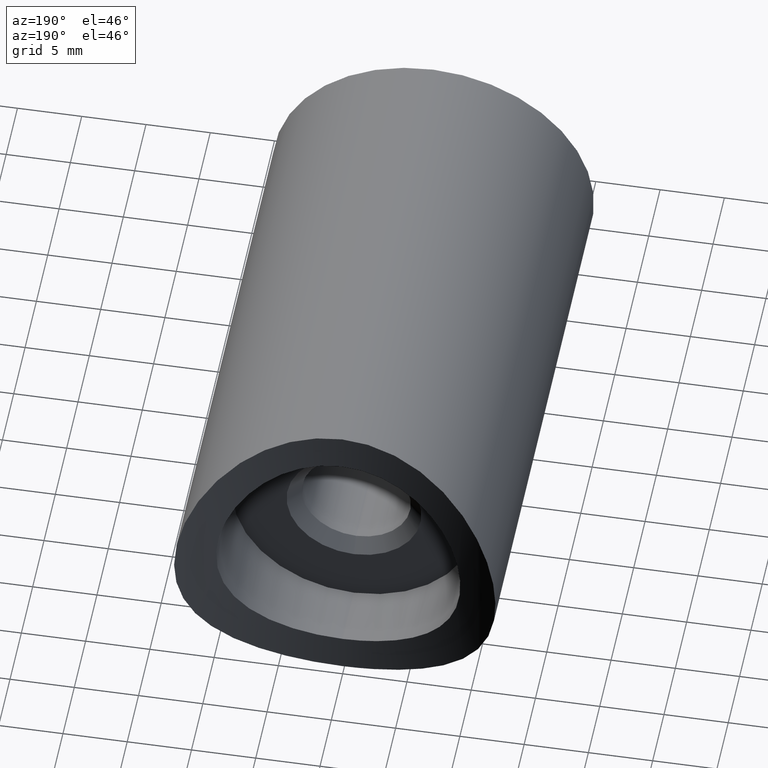
[diagram: clean part render]
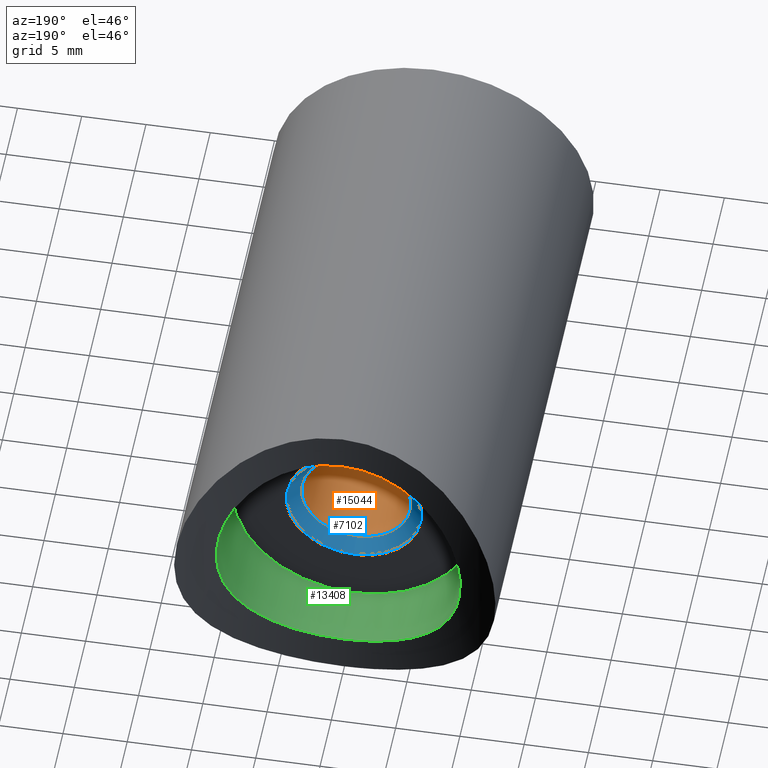
[diagram: same view with three faces highlighted in distinct colors, each labeled with its STEP entity id]
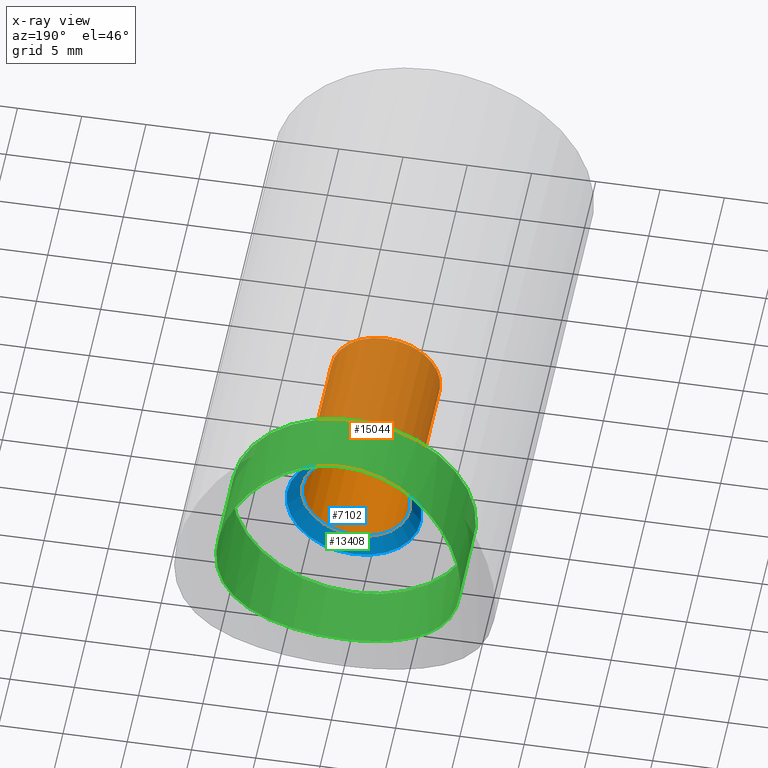
[diagram: x-ray of the same camera — body ghosted, the three highlighted faces saturated]
A machine part, auxiliary view with three faces highlighted in distinct colors.
The next image is the same camera in x-ray (body ghosted, the three faces saturated) — at least one of them is partly hidden behind the body in this view.
Their STEP definitions:

[orange] entity #15044 — the highlighted cylindrical surface (bore or boss wall) has radius 4.25 mm, axis along (-0, 1, -0).
#1251 = AXIS2_PLACEMENT_3D ( 'NONE', #6881, #12577, #11626 ) ;
#1751 = AXIS2_PLACEMENT_3D ( 'NONE', #7840, #14936, #13707 ) ;
#2577 = DIRECTION ( 'NONE',  ( 0.000000000000000000, 1.000000000000000000, 0.000000000000000000 ) ) ;
#2766 = CARTESIAN_POINT ( 'NONE',  ( 0.000000000000000000, 21.00000000000000355, -4.249999999999991118 ) ) ;
#4311 = FACE_OUTER_BOUND ( 'NONE', #10412, .T. ) ;
#4477 = CYLINDRICAL_SURFACE ( 'NONE', #1751, 4.249999999999991118 ) ;
#5110 = CARTESIAN_POINT ( 'NONE',  ( 0.000000000000000000, 34.00000000000001421, 0.000000000000000000 ) ) ;
#5267 = EDGE_LOOP ( 'NONE', ( #5775 ) ) ;
#5775 = ORIENTED_EDGE ( 'NONE', *, *, #13117, .T. ) ;
#6624 = CIRCLE ( 'NONE', #14489, 4.249999999999991118 ) ;
#6881 = CARTESIAN_POINT ( 'NONE',  ( 0.000000000000000000, 21.00000000000000355, 0.000000000000000000 ) ) ;
#7359 = CARTESIAN_POINT ( 'NONE',  ( 0.000000000000000000, 34.00000000000001421, -4.249999999999991118 ) ) ;
#7424 = VERTEX_POINT ( 'NONE', #7359 ) ;
#7840 = CARTESIAN_POINT ( 'NONE',  ( 0.000000000000000000, 35.00000000000000000, 0.000000000000000000 ) ) ;
#9582 = EDGE_CURVE ( 'NONE', #7424, #7424, #6624, .T. ) ;
#10412 = EDGE_LOOP ( 'NONE', ( #12823 ) ) ;
#10745 = VERTEX_POINT ( 'NONE', #2766 ) ;
#11626 = DIRECTION ( 'NONE',  ( 0.000000000000000000, 0.000000000000000000, -1.000000000000000000 ) ) ;
#11984 = DIRECTION ( 'NONE',  ( 0.000000000000000000, 0.000000000000000000, -1.000000000000000000 ) ) ;
#12577 = DIRECTION ( 'NONE',  ( 0.000000000000000000, -1.000000000000000000, 0.000000000000000000 ) ) ;
#12823 = ORIENTED_EDGE ( 'NONE', *, *, #9582, .T. ) ;
#13117 = EDGE_CURVE ( 'NONE', #10745, #10745, #15046, .T. ) ;
#13294 = FACE_OUTER_BOUND ( 'NONE', #5267, .T. ) ;
#13707 = DIRECTION ( 'NONE',  ( 0.000000000000000000, 0.000000000000000000, 1.000000000000000000 ) ) ;
#14489 = AXIS2_PLACEMENT_3D ( 'NONE', #5110, #2577, #11984 ) ;
#14936 = DIRECTION ( 'NONE',  ( -0.000000000000000000, 1.000000000000000000, -0.000000000000000000 ) ) ;
#15044 = ADVANCED_FACE ( 'NONE', ( #4311, #13294 ), #4477, .F. ) ;
#15046 = CIRCLE ( 'NONE', #1251, 4.249999999999991118 ) ;

[blue] entity #7102 — the highlighted conical surface has half-angle 45 deg.
#791 = EDGE_LOOP ( 'NONE', ( #10632 ) ) ;
#1299 = VERTEX_POINT ( 'NONE', #11811 ) ;
#1347 = CONICAL_SURFACE ( 'NONE', #11264, 4.249999999999991118, 0.7853981633974548293 ) ;
#1697 = CIRCLE ( 'NONE', #12731, 5.249999999999991118 ) ;
#2577 = DIRECTION ( 'NONE',  ( 0.000000000000000000, 1.000000000000000000, 0.000000000000000000 ) ) ;
#4655 = CARTESIAN_POINT ( 'NONE',  ( 0.000000000000000000, 35.00000000000000000, 0.000000000000000000 ) ) ;
#5011 = DIRECTION ( 'NONE',  ( 0.000000000000000000, 0.000000000000000000, 1.000000000000000000 ) ) ;
#5110 = CARTESIAN_POINT ( 'NONE',  ( 0.000000000000000000, 34.00000000000001421, 0.000000000000000000 ) ) ;
#5630 = ORIENTED_EDGE ( 'NONE', *, *, #8544, .F. ) ;
#6624 = CIRCLE ( 'NONE', #14489, 4.249999999999991118 ) ;
#7102 = ADVANCED_FACE ( 'NONE', ( #14751, #8114 ), #1347, .F. ) ;
#7359 = CARTESIAN_POINT ( 'NONE',  ( 0.000000000000000000, 34.00000000000001421, -4.249999999999991118 ) ) ;
#7424 = VERTEX_POINT ( 'NONE', #7359 ) ;
#8114 = FACE_BOUND ( 'NONE', #791, .T. ) ;
#8544 = EDGE_CURVE ( 'NONE', #1299, #1299, #1697, .T. ) ;
#9449 = DIRECTION ( 'NONE',  ( 0.000000000000000000, 1.000000000000000000, 0.000000000000000000 ) ) ;
#9582 = EDGE_CURVE ( 'NONE', #7424, #7424, #6624, .T. ) ;
#9849 = EDGE_LOOP ( 'NONE', ( #5630 ) ) ;
#10632 = ORIENTED_EDGE ( 'NONE', *, *, #9582, .F. ) ;
#10753 = CARTESIAN_POINT ( 'NONE',  ( 0.000000000000000000, 34.00000000000001421, 0.000000000000000000 ) ) ;
#11264 = AXIS2_PLACEMENT_3D ( 'NONE', #10753, #9449, #5011 ) ;
#11811 = CARTESIAN_POINT ( 'NONE',  ( 0.000000000000000000, 35.00000000000000000, -5.249999999999991118 ) ) ;
#11984 = DIRECTION ( 'NONE',  ( 0.000000000000000000, 0.000000000000000000, -1.000000000000000000 ) ) ;
#12731 = AXIS2_PLACEMENT_3D ( 'NONE', #4655, #15072, #13883 ) ;
#13883 = DIRECTION ( 'NONE',  ( 0.000000000000000000, 0.000000000000000000, -1.000000000000000000 ) ) ;
#14489 = AXIS2_PLACEMENT_3D ( 'NONE', #5110, #2577, #11984 ) ;
#14751 = FACE_OUTER_BOUND ( 'NONE', #9849, .T. ) ;
#15072 = DIRECTION ( 'NONE',  ( 0.000000000000000000, -1.000000000000000000, 0.000000000000000000 ) ) ;

[green] entity #13408 — the highlighted cylindrical surface (bore or boss wall) has radius 9.5 mm, axis along (-0, -1, -0).
#46 = CARTESIAN_POINT ( 'NONE',  ( -3.378324793188792530, 40.23567709680905580, -8.884536148079384077 ) ) ;
#58 = AXIS2_PLACEMENT_3D ( 'NONE', #1732, #3054, #9934 ) ;
#97 = CARTESIAN_POINT ( 'NONE',  ( -6.277639297956276287, 40.82888153849504675, -7.137010952105952377 ) ) ;
#758 = ORIENTED_EDGE ( 'NONE', *, *, #9676, .T. ) ;
#886 = CARTESIAN_POINT ( 'NONE',  ( 5.798810078399077028, 40.70523685616370813, -7.531210320333031838 ) ) ;
#928 = FACE_OUTER_BOUND ( 'NONE', #11283, .T. ) ;
#944 = CARTESIAN_POINT ( 'NONE',  ( -8.216106106290530064, 41.44003022689673799, 4.779323449297365300 ) ) ;
#994 = CARTESIAN_POINT ( 'NONE',  ( 4.229353381389519662, 40.37159070499657076, 8.512301521622475775 ) ) ;
#1040 = CARTESIAN_POINT ( 'NONE',  ( -9.434962940845297297, 41.91889607188140587, 1.273160634128861268 ) ) ;
#1092 = CARTESIAN_POINT ( 'NONE',  ( 7.147168841551579277, 41.08090777420344608, 6.266091578966777043 ) ) ;
#1136 = CARTESIAN_POINT ( 'NONE',  ( -5.553079317562376716, 40.64565565303477968, -7.714129740837599059 ) ) ;
#1184 = CARTESIAN_POINT ( 'NONE',  ( -8.226763975962537501, 41.44389147346073798, -4.760989118344685522 ) ) ;
#1732 = CARTESIAN_POINT ( 'NONE',  ( 0.000000000000000000, 35.00000000000000000, 0.000000000000000000 ) ) ;
#1860 = CARTESIAN_POINT ( 'NONE',  ( 2.476898393227371820, 40.12545592991585153, -9.176787205671457670 ) ) ;
#2054 = CARTESIAN_POINT ( 'NONE',  ( 9.011774073292217579, 41.74291890696500218, 3.071009793062433157 ) ) ;
#2104 = CARTESIAN_POINT ( 'NONE',  ( -9.187328606542148890, 41.81541917489056459, 2.496488888585710608 ) ) ;
#2156 = CARTESIAN_POINT ( 'NONE',  ( 6.275586754272985068, 40.82833350539628725, -7.138791081410559514 ) ) ;
#2210 = CARTESIAN_POINT ( 'NONE',  ( -9.500662680517624636, 41.94729950751320047, -0.6160530832159520909 ) ) ;
#2260 = CARTESIAN_POINT ( 'NONE',  ( 0.6367274069740836984, 40.00637850114736693, 9.483817578424563521 ) ) ;
#2350 = CARTESIAN_POINT ( 'NONE',  ( -8.653247290357747090, 41.60315748394175728, -3.932850197670829218 ) ) ;
#2393 = CARTESIAN_POINT ( 'NONE',  ( -2.485849473620657779, 40.12640256134528016, -9.174306299042536139 ) ) ;
#2661 = DIRECTION ( 'NONE',  ( -0.000000000000000000, -1.000000000000000000, -0.000000000000000000 ) ) ;
#2693 = EDGE_CURVE ( 'NONE', #7367, #7367, #3895, .T. ) ;
#3054 = DIRECTION ( 'NONE',  ( 0.000000000000000000, -1.000000000000000000, 0.000000000000000000 ) ) ;
#3087 = CARTESIAN_POINT ( 'NONE',  ( 2.174000736269223744, 40.09609725218492571, -9.253158087516533570 ) ) ;
#3244 = CARTESIAN_POINT ( 'NONE',  ( 8.236572966326860978, 41.44503504265566818, -4.774411568650106297 ) ) ;
#3293 = CARTESIAN_POINT ( 'NONE',  ( -4.218238365120587474, 40.36961082937599343, 8.517827586905385218 ) ) ;
#3340 = CARTESIAN_POINT ( 'NONE',  ( 0.01253060823599266155, 39.99394442722092435, 9.515361503100105978 ) ) ;
#3387 = CARTESIAN_POINT ( 'NONE',  ( -9.255283127220216954, 41.84379706405243837, -2.165420669590639502 ) ) ;
#3435 = CARTESIAN_POINT ( 'NONE',  ( 8.990454928467288553, 41.73562935201542956, -3.085357486730782917 ) ) ;
#3480 = CARTESIAN_POINT ( 'NONE',  ( -8.065665250542709330, 41.38598009467084893, -5.028958794178328695 ) ) ;
#3895 = B_SPLINE_CURVE_WITH_KNOTS ( 'NONE', 3,
 ( #9014, #8851, #11354, #3087, #1860, #11304, #13647, #5297, #4320, #5498, #886, #2156, #9060, #11559, #12562, #3244, #12614, #10275, #3435, #5704, #5648, #10473, #9265, #11508, #13853, #7881, #12772, #14979, #2054, #6815, #5547, #10375, #10322, #1092, #6867, #6912, #11655, #7926, #15038, #994, #4523, #4426, #6717, #11457, #5597, #2260, #3340, #15085, #13795, #6766, #9169, #12721, #5751, #3293, #11610, #7975, #4473, #13899, #12675, #8026, #13751, #944, #14928, #9220, #9115, #2104, #1040, #4575, #2210, #10420, #3387, #13951, #15135, #8071, #2350, #14145, #1184, #3480, #10522, #7153, #5800, #97, #6969, #1136, #8123, #4669, #46, #13997, #2393, #5846, #12914, #5993, #4813, #5897, #12867 ),
 .UNSPECIFIED., .T., .F.,
 ( 4, 2, 2, 2, 2, 2, 2, 2, 2, 2, 2, 2, 2, 2, 2, 2, 2, 2, 2, 2, 2, 2, 2, 1, 2, 2, 2, 2, 2, 2, 2, 2, 2, 2, 2, 2, 2, 2, 2, 2, 2, 2, 2, 2, 2, 2, 2, 4 ),
 ( 0.000000000000000000, 0.001874720630790739162, 0.002812080946186108418, 0.003749441261581477457, 0.005624161892372214235, 0.006561522207767583707, 0.007498882523162953180, 0.009373603153953694728, 0.01124832378474443888, 0.01218568410013981182, 0.01312304441553518303, 0.01499776504632592544, 0.01593512536172130012, 0.01687248567711667133, 0.01874720630790741721, 0.02062192693869816310, 0.02155928725409353777, 0.02249664756948890551, 0.02437136820027964793, 0.02530872851567501913, 0.02624608883107039381, 0.02812080946186113969, 0.02905816977725651090, 0.02999553009265188558, 0.03093289040804725679, 0.03187025072344262799, 0.03374497135423336347, 0.03468233166962873121, 0.03561969198502410588, 0.03749441261581484136, 0.03936913324660558378, 0.04030649356200095151, 0.04124385387739631925, 0.04311857450818706167, 0.04499329513897779714, 0.04686801576976853956, 0.04780537608516390730, 0.04874273640055927503, 0.04968009671595464277, 0.05061745703135001051, 0.05249217766214075986, 0.05342953797753613454, 0.05436689829293149534, 0.05624161892372224469, 0.05717897923911762631, 0.05811633955451299405, 0.05905369986990837566, 0.05999106018530374340 ),
 .UNSPECIFIED. ) ;
#4320 = CARTESIAN_POINT ( 'NONE',  ( 4.777492450567413229, 40.47141337804064420, -8.234587001808487017 ) ) ;
#4426 = CARTESIAN_POINT ( 'NONE',  ( 3.093813615829778652, 40.19203433111394475, 9.003380680992762564 ) ) ;
#4473 = CARTESIAN_POINT ( 'NONE',  ( -5.799092914521406961, 40.70073719207623952, 7.549815552955281284 ) ) ;
#4523 = CARTESIAN_POINT ( 'NONE',  ( 3.949770568916390445, 40.32343629741846769, 8.645516123807400533 ) ) ;
#4575 = CARTESIAN_POINT ( 'NONE',  ( -9.499326505657210262, 41.94672779820568564, 0.6363243742295868755 ) ) ;
#4669 = CARTESIAN_POINT ( 'NONE',  ( -4.244949404084837674, 40.36881882954116918, -8.521892304879825630 ) ) ;
#4813 = CARTESIAN_POINT ( 'NONE',  ( -0.6353278872126882915, 40.00631901483397712, -9.483969120928298580 ) ) ;
#5185 = CARTESIAN_POINT ( 'NONE',  ( 0.000000000000000000, 35.00000000000000000, -9.500000000000000000 ) ) ;
#5297 = CARTESIAN_POINT ( 'NONE',  ( 4.234205104439966227, 40.36699973984650569, -8.526914707248510084 ) ) ;
#5498 = CARTESIAN_POINT ( 'NONE',  ( 5.548325332916297370, 40.64451264848280942, -7.717629189169090687 ) ) ;
#5547 = CARTESIAN_POINT ( 'NONE',  ( 8.237217831319826544, 41.44533245457876802, 4.772522679604958462 ) ) ;
#5597 = CARTESIAN_POINT ( 'NONE',  ( 1.260343601547137871, 40.03089121637466974, 9.421238629142058230 ) ) ;
#5604 = VERTEX_POINT ( 'NONE', #5185 ) ;
#5648 = CARTESIAN_POINT ( 'NONE',  ( 9.251696904950396316, 41.84230876325578663, -2.180429874088625652 ) ) ;
#5704 = CARTESIAN_POINT ( 'NONE',  ( 9.173829633520957927, 41.81005503092797682, -2.487681751522927254 ) ) ;
#5751 = CARTESIAN_POINT ( 'NONE',  ( -3.934444486296409860, 40.32087562434656292, 8.652572895259920571 ) ) ;
#5800 = CARTESIAN_POINT ( 'NONE',  ( -6.508174638112109278, 40.89236685973548902, -6.927380896768308816 ) ) ;
#5846 = CARTESIAN_POINT ( 'NONE',  ( -2.183789432479956716, 40.09698196075515142, -9.250860053672592898 ) ) ;
#5897 = CARTESIAN_POINT ( 'NONE',  ( -0.3171744019907629109, 40.00000000000001421, -9.500000000000003553 ) ) ;
#5993 = CARTESIAN_POINT ( 'NONE',  ( -1.262451520650297754, 40.03097868495189005, -9.421015230271063245 ) ) ;
#6717 = CARTESIAN_POINT ( 'NONE',  ( 2.500404097984874507, 40.12179392227975683, 9.186700151532587455 ) ) ;
#6766 = CARTESIAN_POINT ( 'NONE',  ( -1.553460638403718619, 40.04803593235152448, 9.377387258404233705 ) ) ;
#6815 = CARTESIAN_POINT ( 'NONE',  ( 8.529957691302316292, 41.55510728411172749, 4.228829020159077245 ) ) ;
#6867 = CARTESIAN_POINT ( 'NONE',  ( 6.938676291945657049, 41.01715648012772419, 6.496099429218709531 ) ) ;
#6912 = CARTESIAN_POINT ( 'NONE',  ( 6.286814923218985385, 40.82826828645840322, 7.148713453203212609 ) ) ;
#6969 = CARTESIAN_POINT ( 'NONE',  ( -5.800068759184891398, 40.70554385703261602, -7.530264462451015994 ) ) ;
#7153 = CARTESIAN_POINT ( 'NONE',  ( -7.161008188894712134, 41.08167090256070964, -6.272936677098544855 ) ) ;
#7367 = VERTEX_POINT ( 'NONE', #11953 ) ;
#7881 = CARTESIAN_POINT ( 'NONE',  ( 9.423099453564327987, 41.91424425455463876, 1.247042695232505549 ) ) ;
#7926 = CARTESIAN_POINT ( 'NONE',  ( 5.044969069780083970, 40.53136713757004372, 8.055662908764862351 ) ) ;
#7975 = CARTESIAN_POINT ( 'NONE',  ( -5.031704170482043992, 40.52854408895726834, 8.063916636441508246 ) ) ;
#8026 = CARTESIAN_POINT ( 'NONE',  ( -7.542979384534647558, 41.20534345693084788, 5.807806941451841176 ) ) ;
#8071 = CARTESIAN_POINT ( 'NONE',  ( -8.891121034785884447, 41.69589652520494383, -3.360649652997345971 ) ) ;
#8123 = CARTESIAN_POINT ( 'NONE',  ( -4.787628771710839892, 40.47354158460969131, -8.228399662555501592 ) ) ;
#8851 = CARTESIAN_POINT ( 'NONE',  ( 0.6343488039815247115, 39.99999999999999289, -9.500000000000001776 ) ) ;
#9014 = CARTESIAN_POINT ( 'NONE',  ( -4.065758146820641628E-16, 40.00000000000000711, -9.500000000000003553 ) ) ;
#9060 = CARTESIAN_POINT ( 'NONE',  ( 6.502903001252343884, 40.89090259929587745, -6.932254495519477366 ) ) ;
#9115 = CARTESIAN_POINT ( 'NONE',  ( -9.005327352623416104, 41.74034258593999880, 3.088788311459556013 ) ) ;
#9169 = CARTESIAN_POINT ( 'NONE',  ( -2.477368257026593135, 40.11946122093323197, 9.192778334958571662 ) ) ;
#9220 = CARTESIAN_POINT ( 'NONE',  ( -8.645799211394628259, 41.60029495687118839, 3.949277084034136465 ) ) ;
#9265 = CARTESIAN_POINT ( 'NONE',  ( 9.499214769619738874, 41.94667998977247692, -0.6384542957926163664 ) ) ;
#9676 = EDGE_CURVE ( 'NONE', #5604, #5604, #10881, .T. ) ;
#9934 = DIRECTION ( 'NONE',  ( 0.000000000000000000, 0.000000000000000000, -1.000000000000000000 ) ) ;
#10275 = CARTESIAN_POINT ( 'NONE',  ( 8.884871832431224803, 41.69342269747136953, -3.377035680665609441 ) ) ;
#10322 = CARTESIAN_POINT ( 'NONE',  ( 7.540132609630783911, 41.20634207888517864, 5.787255511451573575 ) ) ;
#10375 = CARTESIAN_POINT ( 'NONE',  ( 7.723775209362805150, 41.26772316830309251, 5.539673194081197849 ) ) ;
#10420 = CARTESIAN_POINT ( 'NONE',  ( -9.440023145085604028, 41.92104852317646646, -1.238229698173415549 ) ) ;
#10473 = CARTESIAN_POINT ( 'NONE',  ( 9.437043816654817618, 41.91978093354747870, -1.258921852254841545 ) ) ;
#10522 = CARTESIAN_POINT ( 'NONE',  ( -7.550169701924352772, 41.20768821133577120, -5.798833281063225265 ) ) ;
#10536 = ORIENTED_EDGE ( 'NONE', *, *, #2693, .F. ) ;
#10881 = CIRCLE ( 'NONE', #58, 9.500000000000000000 ) ;
#10937 = DIRECTION ( 'NONE',  ( 0.000000000000000000, 0.000000000000000000, -1.000000000000000000 ) ) ;
#11283 = EDGE_LOOP ( 'NONE', ( #758 ) ) ;
#11304 = CARTESIAN_POINT ( 'NONE',  ( 3.077021658739413468, 40.19492368750546518, -8.993352366064403469 ) ) ;
#11354 = CARTESIAN_POINT ( 'NONE',  ( 1.256893714816298857, 40.02493451614623154, -9.437111494792391753 ) ) ;
#11457 = CARTESIAN_POINT ( 'NONE',  ( 1.573465314519173708, 40.04932036444493804, 9.374090728484141266 ) ) ;
#11508 = CARTESIAN_POINT ( 'NONE',  ( 9.500381635804107106, 41.94717925683632131, 0.3015378183090488551 ) ) ;
#11559 = CARTESIAN_POINT ( 'NONE',  ( 7.152746981666465942, 41.07914938774874969, -6.282022759720641503 ) ) ;
#11610 = CARTESIAN_POINT ( 'NONE',  ( -4.766860932096805392, 40.47348250131879865, 8.223378779994924059 ) ) ;
#11655 = CARTESIAN_POINT ( 'NONE',  ( 5.813957471726456383, 40.70439223781713878, 7.538538968242264104 ) ) ;
#11747 = FACE_OUTER_BOUND ( 'NONE', #12620, .T. ) ;
#11771 = CARTESIAN_POINT ( 'NONE',  ( 0.000000000000000000, 64.15000000000000568, 0.000000000000000000 ) ) ;
#11953 = CARTESIAN_POINT ( 'NONE',  ( 0.000000000000000000, 39.99999999999999289, -9.500000000000000000 ) ) ;
#12172 = AXIS2_PLACEMENT_3D ( 'NONE', #11771, #2661, #10937 ) ;
#12562 = CARTESIAN_POINT ( 'NONE',  ( 7.544457634476888330, 41.20576920126885767, -5.806659888272250214 ) ) ;
#12614 = CARTESIAN_POINT ( 'NONE',  ( 8.527852376057257544, 41.55434819827350879, -4.231666778120476202 ) ) ;
#12620 = EDGE_LOOP ( 'NONE', ( #10536 ) ) ;
#12675 = CARTESIAN_POINT ( 'NONE',  ( -7.153422303367728219, 41.07924161334418756, 6.282005769728948863 ) ) ;
#12721 = CARTESIAN_POINT ( 'NONE',  ( -3.072267678048750117, 40.18916197169118476, 9.011029675267772987 ) ) ;
#12772 = CARTESIAN_POINT ( 'NONE',  ( 9.376693620057872991, 41.89456204277399110, 1.557247264431480316 ) ) ;
#12867 = CARTESIAN_POINT ( 'NONE',  ( -4.065758146820641628E-16, 40.00000000000000711, -9.500000000000003553 ) ) ;
#12914 = CARTESIAN_POINT ( 'NONE',  ( -1.572090179147044964, 40.04927085023613387, -9.374213592972793663 ) ) ;
#13013 = CYLINDRICAL_SURFACE ( 'NONE', #12172, 9.500000000000000000 ) ;
#13408 = ADVANCED_FACE ( 'NONE', ( #11747, #928 ), #13013, .F. ) ;
#13647 = CARTESIAN_POINT ( 'NONE',  ( 3.373369171928276344, 40.23500148463070047, -8.886341893753190391 ) ) ;
#13751 = CARTESIAN_POINT ( 'NONE',  ( -8.056722323660364893, 41.38281855678744137, 5.043165203084811310 ) ) ;
#13795 = CARTESIAN_POINT ( 'NONE',  ( -1.238753796529363349, 40.02975783685547384, 9.424137995978075111 ) ) ;
#13853 = CARTESIAN_POINT ( 'NONE',  ( 9.485152732290416111, 41.94064353638328413, 0.6178967879999756052 ) ) ;
#13899 = CARTESIAN_POINT ( 'NONE',  ( -6.275471604676980064, 40.82512488083460767, 7.159155207153956368 ) ) ;
#13951 = CARTESIAN_POINT ( 'NONE',  ( -9.178132630791342450, 41.81182592256002550, -2.471680644941140592 ) ) ;
#13997 = CARTESIAN_POINT ( 'NONE',  ( -3.082449562587941561, 40.19564369067416720, -8.991431942035321256 ) ) ;
#14145 = CARTESIAN_POINT ( 'NONE',  ( -8.520452612577111395, 41.55245815996788394, -4.212902820861091691 ) ) ;
#14928 = CARTESIAN_POINT ( 'NONE',  ( -8.510542519066499167, 41.54872143713437538, 4.232847530208169395 ) ) ;
#14979 = CARTESIAN_POINT ( 'NONE',  ( 9.193056664637767383, 41.81778522380194119, 2.475342058951150559 ) ) ;
#15038 = CARTESIAN_POINT ( 'NONE',  ( 4.776994683298574351, 40.47553062007273184, 8.217483131435338706 ) ) ;
#15085 = CARTESIAN_POINT ( 'NONE',  ( -0.6128182607090517653, 40.00574505691896832, 9.485427861461763754 ) ) ;
#15135 = CARTESIAN_POINT ( 'NONE',  ( -8.996200247582853748, 41.73793805095572651, -3.068502061978069850 ) ) ;